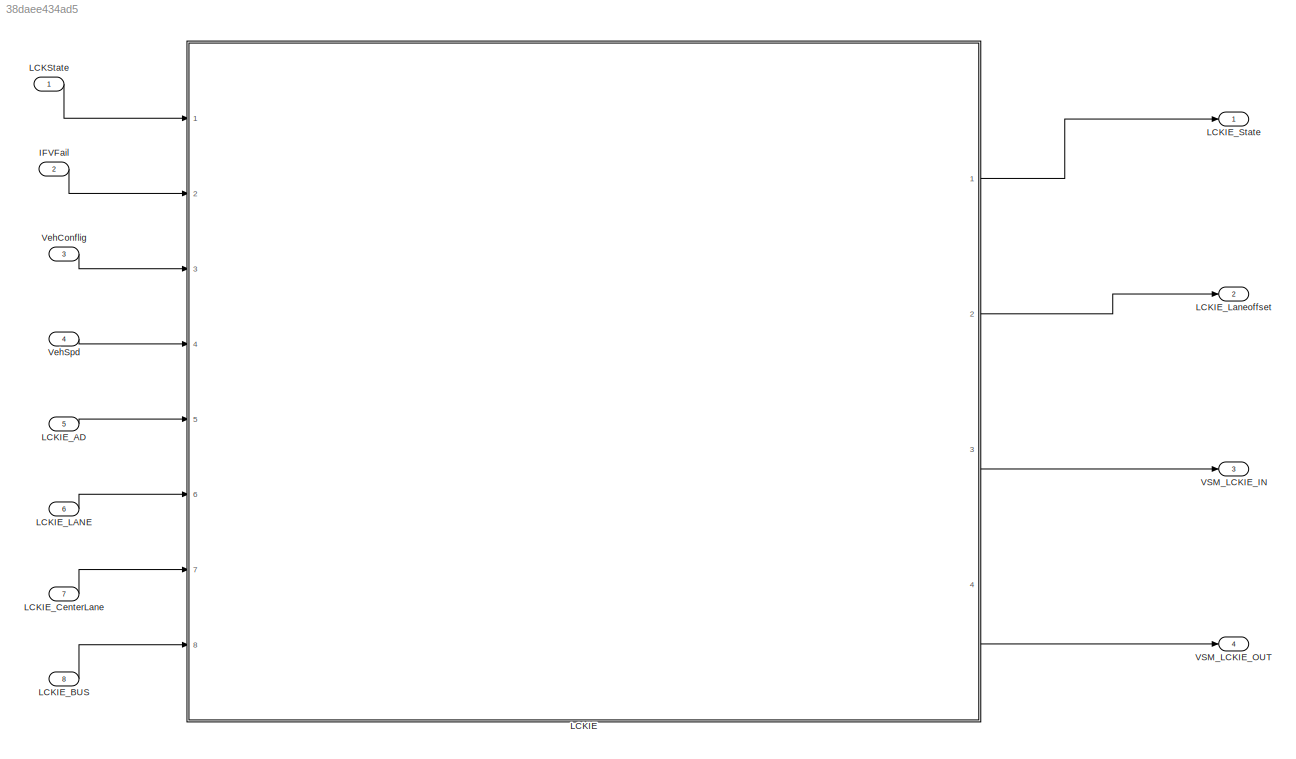
MODEL slx_38daee434ad5
KIND model
CONFIG AbsTol = auto
CONFIG EnableMultiTasking = off
CONFIG FixedStep = auto
CONFIG InitFcn = , if any(exist('rtifpga_mdlclblib', 'file') ~= 0), rtifpga_mdlclblib('Init', bdroot); end,\n, if any(exist('dsmpb_private', 'file') ~= 0), dsmpb_private('dsmpb_mdlclblib', 'Init', bdroot); end,\n
CONFIG MaxStep = auto
CONFIG MinStep = auto
CONFIG PostLoadFcn = if any(exist('dsrtsu_mdlpostloadfcn', 'file') ~= 0), dsrtsu_mdlpostloadfcn('Execute', bdroot); end
CONFIG RelTol = 1e-3
CONFIG SampleTimeConstraint = Unconstrained
CONFIG SolverName = FixedStepDiscrete
CONFIG StartTime = 0.0
CONFIG StopTime = Inf
BLOCK [Inport] IFVFail
  Port = 2
BLOCK [SubSystem] LCKIE
  Ports = [8, 4]
  ReferencedSubsystem = PvtSubSys_VSM_LCKIE
  RequestExecContextInheritance = off
BLOCK [Inport] LCKIE_AD
  BusOutputAsStruct = on
  OutDataTypeStr = Bus: LCKIE_AD
  Port = 5
BLOCK [Inport] LCKIE_BUS
  BusOutputAsStruct = on
  OutDataTypeStr = Bus: TOS_LCKIE_BUS
  Port = 8
BLOCK [Inport] LCKIE_CenterLane
  BusOutputAsStruct = on
  OutDataTypeStr = Bus: CenterLane
  Port = 7
BLOCK [Inport] LCKIE_LANE
  BusOutputAsStruct = on
  OutDataTypeStr = Bus: LCKIE_Lane
  Port = 6
BLOCK [Outport] LCKIE_Laneoffset
  Port = 2
BLOCK [Outport] LCKIE_State
BLOCK [Inport] LCKState
BLOCK [Outport] VSM_LCKIE_IN
  Port = 3
BLOCK [Outport] VSM_LCKIE_OUT
  Port = 4
BLOCK [Inport] VehConflig
  Port = 3
BLOCK [Inport] VehSpd
  Port = 4
LINE IFVFail:1 -> LCKIE:2
LINE LCKIE:1 -> LCKIE_State:1
LINE LCKIE:2 -> LCKIE_Laneoffset:1
LINE LCKIE:3 -> VSM_LCKIE_IN:1
LINE LCKIE:4 -> VSM_LCKIE_OUT:1
LINE LCKIE_AD:1 -> LCKIE:5
LINE LCKIE_BUS:1 -> LCKIE:8
LINE LCKIE_CenterLane:1 -> LCKIE:7
LINE LCKIE_LANE:1 -> LCKIE:6
LINE LCKState:1 -> LCKIE:1
LINE VehConflig:1 -> LCKIE:3
LINE VehSpd:1 -> LCKIE:4
